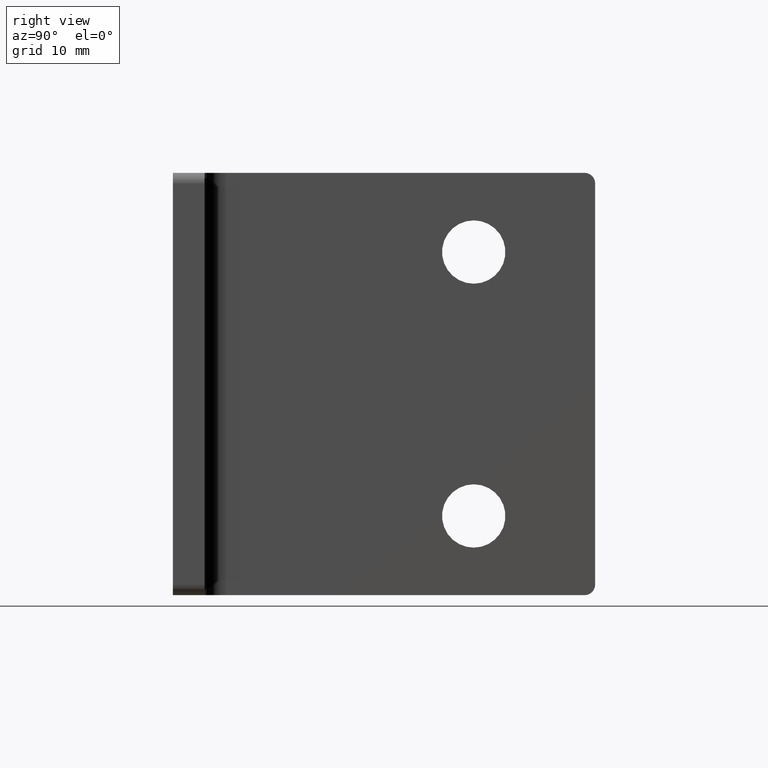
[diagram: clean part render]
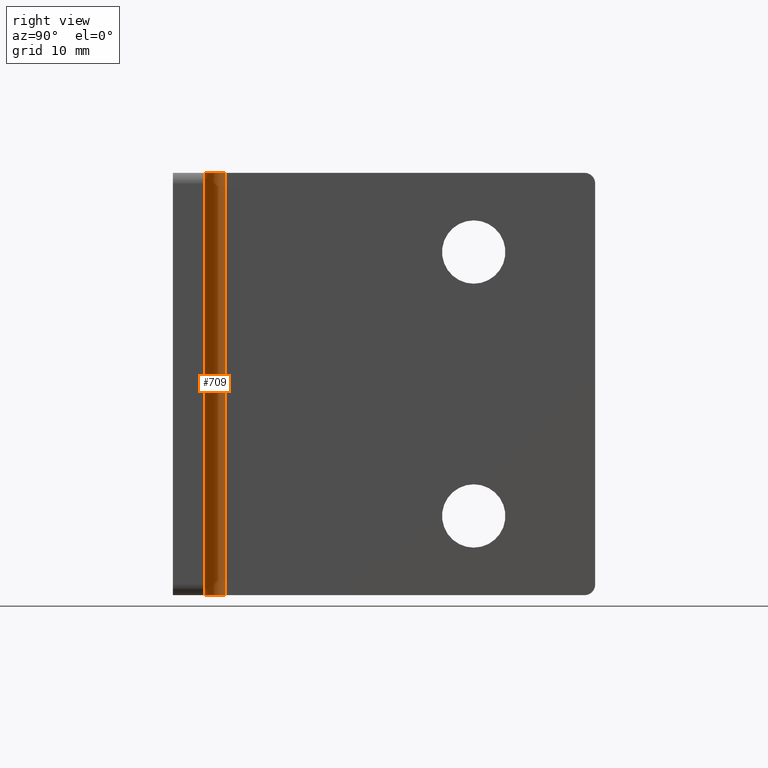
[diagram: same view with one face highlighted and labeled with its STEP entity id]
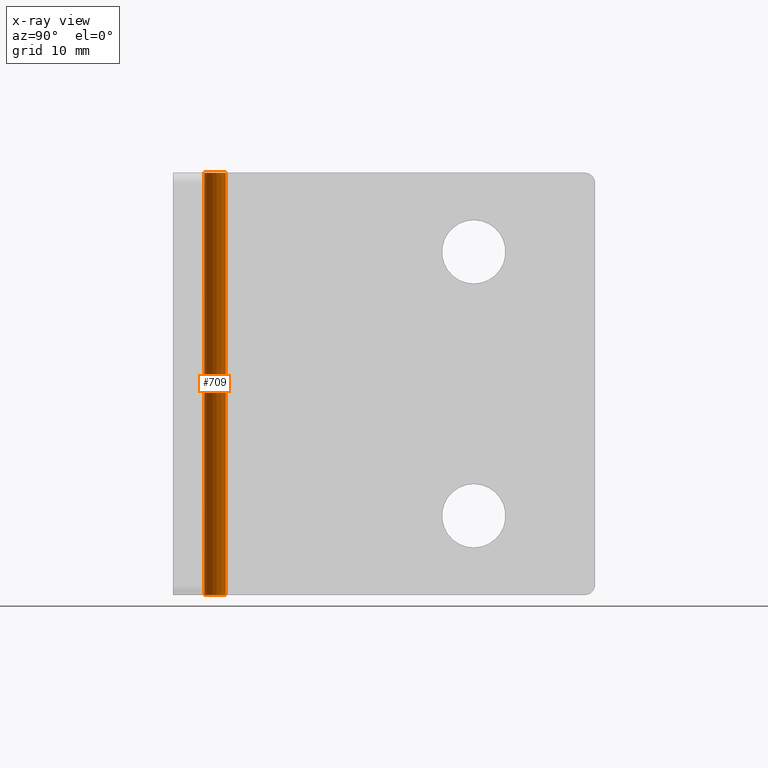
[diagram: x-ray of the same camera — body ghosted, the highlighted face saturated]
A machine part, right view. The second image highlights one B-rep face of the part: STEP entity #709.
The next image is the same camera in x-ray: the body ghosted, the highlighted face saturated — about 0% of this face is hidden behind the body in this view.
In plain terms, the highlighted cylindrical surface (edge-blend (fillet) strip) has radius 2 mm, axis along (0, 0, -1).
Its self-contained STEP definition (entity closure, byte-faithful):
#177=CARTESIAN_POINT('',(-36.999999999999986,4.999999999999996,20.0));
#178=VERTEX_POINT('',#177);
#185=CARTESIAN_POINT('',(-36.999999999999986,4.999999999999996,-20.0));
#186=VERTEX_POINT('',#185);
#187=CARTESIAN_POINT('',(-36.999999999999986,4.999999999999993,20.0));
#188=DIRECTION('',(0.0,0.0,-1.0));
#189=VECTOR('',#188,40.0);
#190=LINE('',#187,#189);
#191=EDGE_CURVE('',#178,#186,#190,.T.);
#253=CARTESIAN_POINT('',(-34.999999999999986,2.999999999999993,-20.0));
#254=VERTEX_POINT('',#253);
#263=CARTESIAN_POINT('',(-34.999999999999986,2.999999999999993,20.0));
#264=VERTEX_POINT('',#263);
#265=CARTESIAN_POINT('',(-34.999999999999986,2.999999999999993,-20.0));
#266=DIRECTION('',(0.0,0.0,1.0));
#267=VECTOR('',#266,40.0);
#268=LINE('',#265,#267);
#269=EDGE_CURVE('',#254,#264,#268,.T.);
#547=CARTESIAN_POINT('',(-34.999999999999986,4.999999999999993,-20.0));
#548=DIRECTION('',(0.0,0.0,1.0));
#549=DIRECTION('',(1.0,0.0,0.0));
#550=AXIS2_PLACEMENT_3D('',#547,#548,#549);
#551=CIRCLE('',#550,2.000000000000001);
#552=EDGE_CURVE('',#186,#254,#551,.T.);
#585=CARTESIAN_POINT('',(-34.999999999999986,4.999999999999993,20.0));
#586=DIRECTION('',(0.0,0.0,-1.0));
#587=DIRECTION('',(1.0,0.0,0.0));
#588=AXIS2_PLACEMENT_3D('',#585,#586,#587);
#589=CIRCLE('',#588,2.000000000000001);
#590=EDGE_CURVE('',#264,#178,#589,.T.);
#698=CARTESIAN_POINT('',(-34.999999999999986,4.999999999999993,20.000000010000001));
#699=DIRECTION('',(0.0,0.0,-1.0));
#700=DIRECTION('',(0.707106781186547,0.707106781186548,0.0));
#701=AXIS2_PLACEMENT_3D('',#698,#699,#700);
#702=CYLINDRICAL_SURFACE('',#701,2.000000000000001);
#703=ORIENTED_EDGE('',*,*,#552,.F.);
#704=ORIENTED_EDGE('',*,*,#191,.F.);
#705=ORIENTED_EDGE('',*,*,#590,.F.);
#706=ORIENTED_EDGE('',*,*,#269,.F.);
#707=EDGE_LOOP('',(#703,#704,#705,#706));
#708=FACE_OUTER_BOUND('',#707,.T.);
#709=ADVANCED_FACE('',(#708),#702,.F.);